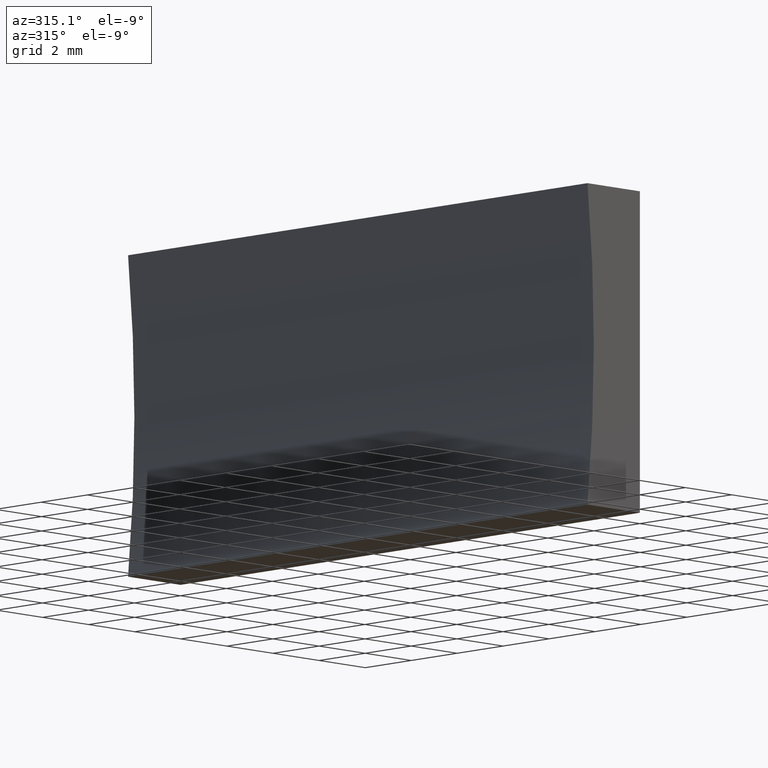
[diagram: clean part render]
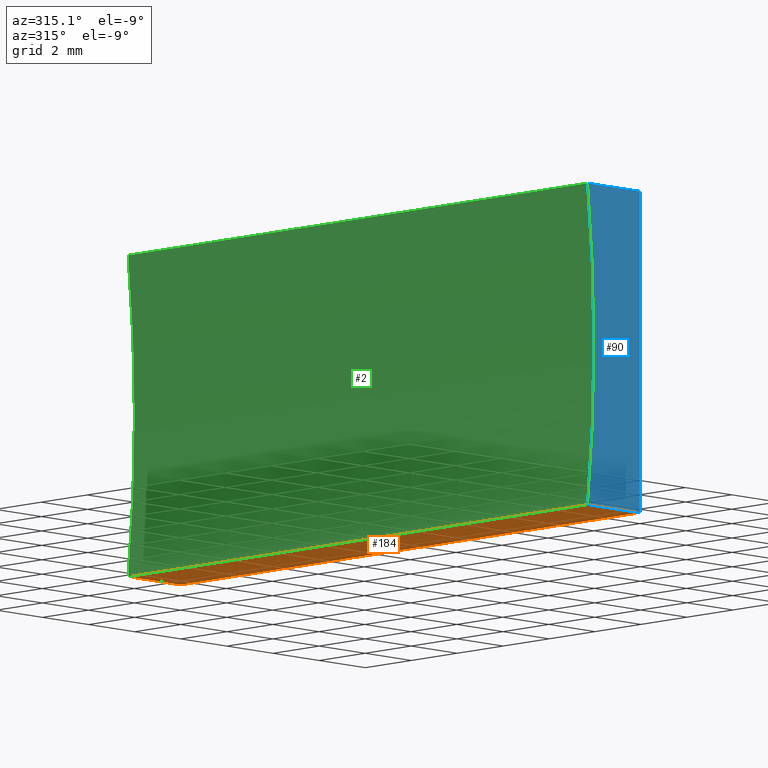
[diagram: same view with three faces highlighted in distinct colors, each labeled with its STEP entity id]
A machine part, auxiliary view with three faces highlighted in distinct colors.
Their STEP definitions:

[orange] entity #184 — the highlighted planar face has unit normal (-0, 0, 1).
#4 = ORIENTED_EDGE ( 'NONE', *, *, #15, .F. ) ;
#6 = ORIENTED_EDGE ( 'NONE', *, *, #111, .T. ) ;
#13 = EDGE_LOOP ( 'NONE', ( #75, #18, #4, #6 ) ) ;
#15 = EDGE_CURVE ( 'NONE', #24, #68, #47, .T. ) ;
#17 = DIRECTION ( 'NONE',  ( -1.000000000000000000, 0.0000000000000000000, -7.630378568483681200E-016 ) ) ;
#18 = ORIENTED_EDGE ( 'NONE', *, *, #148, .F. ) ;
#19 = DIRECTION ( 'NONE',  ( -7.630378568483682100E-016, 0.0000000000000000000, 1.000000000000000000 ) ) ;
#24 = VERTEX_POINT ( 'NONE', #160 ) ;
#32 = PLANE ( 'NONE',  #173 ) ;
#47 = LINE ( 'NONE', #74, #202 ) ;
#55 = DIRECTION ( 'NONE',  ( 1.000000000000000000, 0.0000000000000000000, 7.630378568483682100E-016 ) ) ;
#56 = CARTESIAN_POINT ( 'NONE',  ( 0.0000000000000000000, 0.0000000000000000000, 0.0000000000000000000 ) ) ;
#66 = VERTEX_POINT ( 'NONE', #56 ) ;
#68 = VERTEX_POINT ( 'NONE', #95 ) ;
#74 = CARTESIAN_POINT ( 'NONE',  ( 0.0000000000000000000, 20.00000000000000000, 0.0000000000000000000 ) ) ;
#75 = ORIENTED_EDGE ( 'NONE', *, *, #124, .T. ) ;
#86 = FACE_OUTER_BOUND ( 'NONE', #13, .T. ) ;
#92 = VECTOR ( 'NONE', #121, 1000.000000000000000 ) ;
#93 = LINE ( 'NONE', #108, #99 ) ;
#95 = CARTESIAN_POINT ( 'NONE',  ( -2.273443526304014000, 20.00000000000000000, 8.673617379884035500E-016 ) ) ;
#99 = VECTOR ( 'NONE', #152, 1000.000000000000000 ) ;
#101 = CARTESIAN_POINT ( 'NONE',  ( -2.273443526304014000, 0.0000000000000000000, 8.673617379884035500E-016 ) ) ;
#102 = CARTESIAN_POINT ( 'NONE',  ( 0.0000000000000000000, 20.00000000000000000, 0.0000000000000000000 ) ) ;
#108 = CARTESIAN_POINT ( 'NONE',  ( -2.273443526304014000, 20.00000000000000000, 8.673617379884035500E-016 ) ) ;
#111 = EDGE_CURVE ( 'NONE', #24, #66, #146, .T. ) ;
#112 = CARTESIAN_POINT ( 'NONE',  ( 0.0000000000000000000, 0.0000000000000000000, 0.0000000000000000000 ) ) ;
#121 = DIRECTION ( 'NONE',  ( -0.0000000000000000000, -1.000000000000000000, -0.0000000000000000000 ) ) ;
#124 = EDGE_CURVE ( 'NONE', #66, #189, #172, .T. ) ;
#145 = VECTOR ( 'NONE', #17, 1000.000000000000000 ) ;
#146 = LINE ( 'NONE', #102, #92 ) ;
#148 = EDGE_CURVE ( 'NONE', #68, #189, #93, .T. ) ;
#152 = DIRECTION ( 'NONE',  ( -0.0000000000000000000, -1.000000000000000000, -0.0000000000000000000 ) ) ;
#160 = CARTESIAN_POINT ( 'NONE',  ( 0.0000000000000000000, 20.00000000000000000, 0.0000000000000000000 ) ) ;
#166 = DIRECTION ( 'NONE',  ( -1.000000000000000000, 0.0000000000000000000, -7.630378568483681200E-016 ) ) ;
#172 = LINE ( 'NONE', #112, #145 ) ;
#173 = AXIS2_PLACEMENT_3D ( 'NONE', #183, #19, #55 ) ;
#183 = CARTESIAN_POINT ( 'NONE',  ( 0.0000000000000000000, 20.00000000000000000, 0.0000000000000000000 ) ) ;
#184 = ADVANCED_FACE ( 'NONE', ( #86 ), #32, .F. ) ;
#189 = VERTEX_POINT ( 'NONE', #101 ) ;
#202 = VECTOR ( 'NONE', #166, 1000.000000000000000 ) ;

[blue] entity #90 — the highlighted planar face has unit normal (0, 1, 0).
#3 = DIRECTION ( 'NONE',  ( 1.000000000000000000, -0.0000000000000000000, -7.630378568483683100E-016 ) ) ;
#8 = LINE ( 'NONE', #25, #126 ) ;
#16 = LINE ( 'NONE', #120, #87 ) ;
#17 = DIRECTION ( 'NONE',  ( -1.000000000000000000, 0.0000000000000000000, -7.630378568483681200E-016 ) ) ;
#22 = CARTESIAN_POINT ( 'NONE',  ( -2.273443526304006900, 0.0000000000000000000, 10.00000000000000200 ) ) ;
#25 = CARTESIAN_POINT ( 'NONE',  ( 0.0000000000000000000, 0.0000000000000000000, 0.0000000000000000000 ) ) ;
#28 = EDGE_LOOP ( 'NONE', ( #179, #153, #64, #110 ) ) ;
#35 = VERTEX_POINT ( 'NONE', #117 ) ;
#42 = FACE_OUTER_BOUND ( 'NONE', #28, .T. ) ;
#43 = AXIS2_PLACEMENT_3D ( 'NONE', #155, #192, #46 ) ;
#46 = DIRECTION ( 'NONE',  ( 0.0000000000000000000, -0.0000000000000000000, 1.000000000000000000 ) ) ;
#56 = CARTESIAN_POINT ( 'NONE',  ( 0.0000000000000000000, 0.0000000000000000000, 0.0000000000000000000 ) ) ;
#64 = ORIENTED_EDGE ( 'NONE', *, *, #85, .F. ) ;
#66 = VERTEX_POINT ( 'NONE', #56 ) ;
#79 = EDGE_CURVE ( 'NONE', #35, #66, #8, .T. ) ;
#81 = VERTEX_POINT ( 'NONE', #22 ) ;
#85 = EDGE_CURVE ( 'NONE', #81, #35, #16, .T. ) ;
#87 = VECTOR ( 'NONE', #3, 1000.000000000000000 ) ;
#90 = ADVANCED_FACE ( 'NONE', ( #42 ), #144, .F. ) ;
#101 = CARTESIAN_POINT ( 'NONE',  ( -2.273443526304014000, 0.0000000000000000000, 8.673617379884035500E-016 ) ) ;
#103 = CIRCLE ( 'NONE', #188, 45.85000000000000100 ) ;
#110 = ORIENTED_EDGE ( 'NONE', *, *, #122, .F. ) ;
#112 = CARTESIAN_POINT ( 'NONE',  ( 0.0000000000000000000, 0.0000000000000000000, 0.0000000000000000000 ) ) ;
#117 = CARTESIAN_POINT ( 'NONE',  ( 6.123233995736766300E-016, 0.0000000000000000000, 10.00000000000000000 ) ) ;
#120 = CARTESIAN_POINT ( 'NONE',  ( 6.123233995736766300E-016, 0.0000000000000000000, 10.00000000000000000 ) ) ;
#122 = EDGE_CURVE ( 'NONE', #189, #81, #103, .T. ) ;
#124 = EDGE_CURVE ( 'NONE', #66, #189, #172, .T. ) ;
#126 = VECTOR ( 'NONE', #140, 1000.000000000000000 ) ;
#127 = DIRECTION ( 'NONE',  ( 0.0000000000000000000, 0.0000000000000000000, 1.000000000000000000 ) ) ;
#140 = DIRECTION ( 'NONE',  ( -6.123233995736766000E-017, -0.0000000000000000000, -1.000000000000000000 ) ) ;
#144 = PLANE ( 'NONE',  #43 ) ;
#145 = VECTOR ( 'NONE', #17, 1000.000000000000000 ) ;
#153 = ORIENTED_EDGE ( 'NONE', *, *, #79, .F. ) ;
#155 = CARTESIAN_POINT ( 'NONE',  ( -47.85000000000000100, 0.0000000000000000000, 5.000000000000004400 ) ) ;
#168 = DIRECTION ( 'NONE',  ( -0.0000000000000000000, -1.000000000000000000, -0.0000000000000000000 ) ) ;
#172 = LINE ( 'NONE', #112, #145 ) ;
#179 = ORIENTED_EDGE ( 'NONE', *, *, #124, .F. ) ;
#188 = AXIS2_PLACEMENT_3D ( 'NONE', #194, #168, #127 ) ;
#189 = VERTEX_POINT ( 'NONE', #101 ) ;
#192 = DIRECTION ( 'NONE',  ( 0.0000000000000000000, 1.000000000000000000, 0.0000000000000000000 ) ) ;
#194 = CARTESIAN_POINT ( 'NONE',  ( -47.85000000000000100, 0.0000000000000000000, 5.000000000000004400 ) ) ;

[green] entity #2 — the highlighted cylindrical surface (partial cylindrical patch) has radius 45.85 mm, axis along (-0, -1, -0).
#2 = ADVANCED_FACE ( 'NONE', ( #198 ), #201, .F. ) ;
#21 = DIRECTION ( 'NONE',  ( 0.0000000000000000000, 0.0000000000000000000, -1.000000000000000000 ) ) ;
#22 = CARTESIAN_POINT ( 'NONE',  ( -2.273443526304006900, 0.0000000000000000000, 10.00000000000000200 ) ) ;
#26 = LINE ( 'NONE', #165, #137 ) ;
#29 = ORIENTED_EDGE ( 'NONE', *, *, #148, .T. ) ;
#39 = AXIS2_PLACEMENT_3D ( 'NONE', #143, #88, #53 ) ;
#44 = ORIENTED_EDGE ( 'NONE', *, *, #60, .F. ) ;
#45 = ORIENTED_EDGE ( 'NONE', *, *, #114, .F. ) ;
#48 = CIRCLE ( 'NONE', #39, 45.85000000000000100 ) ;
#49 = ORIENTED_EDGE ( 'NONE', *, *, #122, .T. ) ;
#52 = AXIS2_PLACEMENT_3D ( 'NONE', #98, #167, #21 ) ;
#53 = DIRECTION ( 'NONE',  ( 0.0000000000000000000, 0.0000000000000000000, 1.000000000000000000 ) ) ;
#60 = EDGE_CURVE ( 'NONE', #68, #169, #48, .T. ) ;
#65 = CARTESIAN_POINT ( 'NONE',  ( -2.273443526304006900, 20.00000000000000000, 10.00000000000000200 ) ) ;
#68 = VERTEX_POINT ( 'NONE', #95 ) ;
#78 = EDGE_LOOP ( 'NONE', ( #49, #45, #44, #29 ) ) ;
#81 = VERTEX_POINT ( 'NONE', #22 ) ;
#88 = DIRECTION ( 'NONE',  ( -0.0000000000000000000, -1.000000000000000000, -0.0000000000000000000 ) ) ;
#93 = LINE ( 'NONE', #108, #99 ) ;
#95 = CARTESIAN_POINT ( 'NONE',  ( -2.273443526304014000, 20.00000000000000000, 8.673617379884035500E-016 ) ) ;
#98 = CARTESIAN_POINT ( 'NONE',  ( -47.85000000000000100, 20.00000000000000000, 5.000000000000004400 ) ) ;
#99 = VECTOR ( 'NONE', #152, 1000.000000000000000 ) ;
#101 = CARTESIAN_POINT ( 'NONE',  ( -2.273443526304014000, 0.0000000000000000000, 8.673617379884035500E-016 ) ) ;
#103 = CIRCLE ( 'NONE', #188, 45.85000000000000100 ) ;
#108 = CARTESIAN_POINT ( 'NONE',  ( -2.273443526304014000, 20.00000000000000000, 8.673617379884035500E-016 ) ) ;
#114 = EDGE_CURVE ( 'NONE', #169, #81, #26, .T. ) ;
#118 = DIRECTION ( 'NONE',  ( -0.0000000000000000000, -1.000000000000000000, -0.0000000000000000000 ) ) ;
#122 = EDGE_CURVE ( 'NONE', #189, #81, #103, .T. ) ;
#127 = DIRECTION ( 'NONE',  ( 0.0000000000000000000, 0.0000000000000000000, 1.000000000000000000 ) ) ;
#137 = VECTOR ( 'NONE', #118, 1000.000000000000000 ) ;
#143 = CARTESIAN_POINT ( 'NONE',  ( -47.85000000000000100, 20.00000000000000000, 5.000000000000004400 ) ) ;
#148 = EDGE_CURVE ( 'NONE', #68, #189, #93, .T. ) ;
#152 = DIRECTION ( 'NONE',  ( -0.0000000000000000000, -1.000000000000000000, -0.0000000000000000000 ) ) ;
#165 = CARTESIAN_POINT ( 'NONE',  ( -2.273443526304006900, 20.00000000000000000, 10.00000000000000200 ) ) ;
#167 = DIRECTION ( 'NONE',  ( -0.0000000000000000000, -1.000000000000000000, -0.0000000000000000000 ) ) ;
#168 = DIRECTION ( 'NONE',  ( -0.0000000000000000000, -1.000000000000000000, -0.0000000000000000000 ) ) ;
#169 = VERTEX_POINT ( 'NONE', #65 ) ;
#188 = AXIS2_PLACEMENT_3D ( 'NONE', #194, #168, #127 ) ;
#189 = VERTEX_POINT ( 'NONE', #101 ) ;
#194 = CARTESIAN_POINT ( 'NONE',  ( -47.85000000000000100, 0.0000000000000000000, 5.000000000000004400 ) ) ;
#198 = FACE_OUTER_BOUND ( 'NONE', #78, .T. ) ;
#201 = CYLINDRICAL_SURFACE ( 'NONE', #52, 45.85000000000000100 ) ;